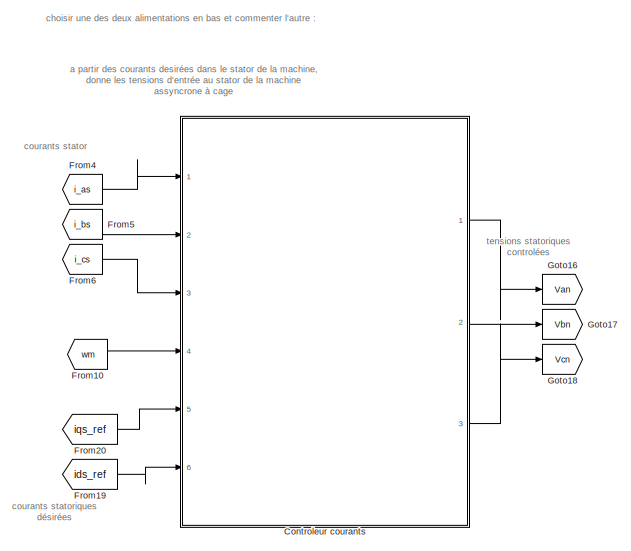
[diagram: root canvas - part 1/3, top left region]
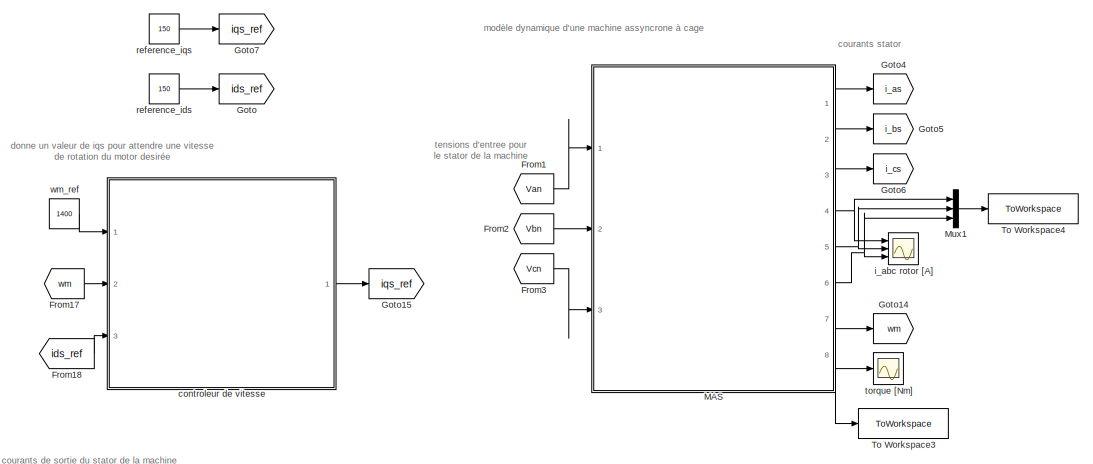
[diagram: root canvas - part 2/3, middle right region]
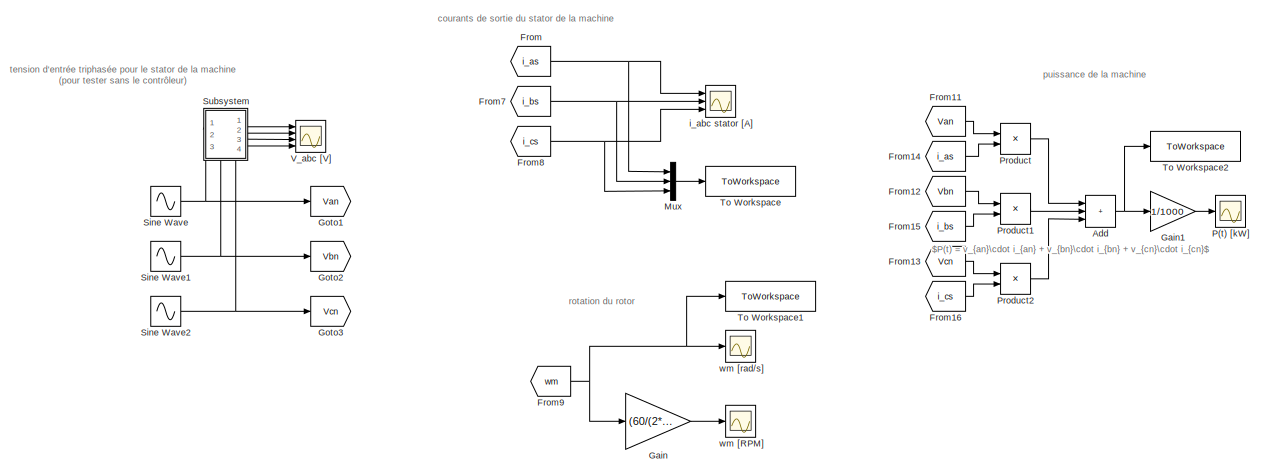
[diagram: root canvas - part 3/3, bottom center region]
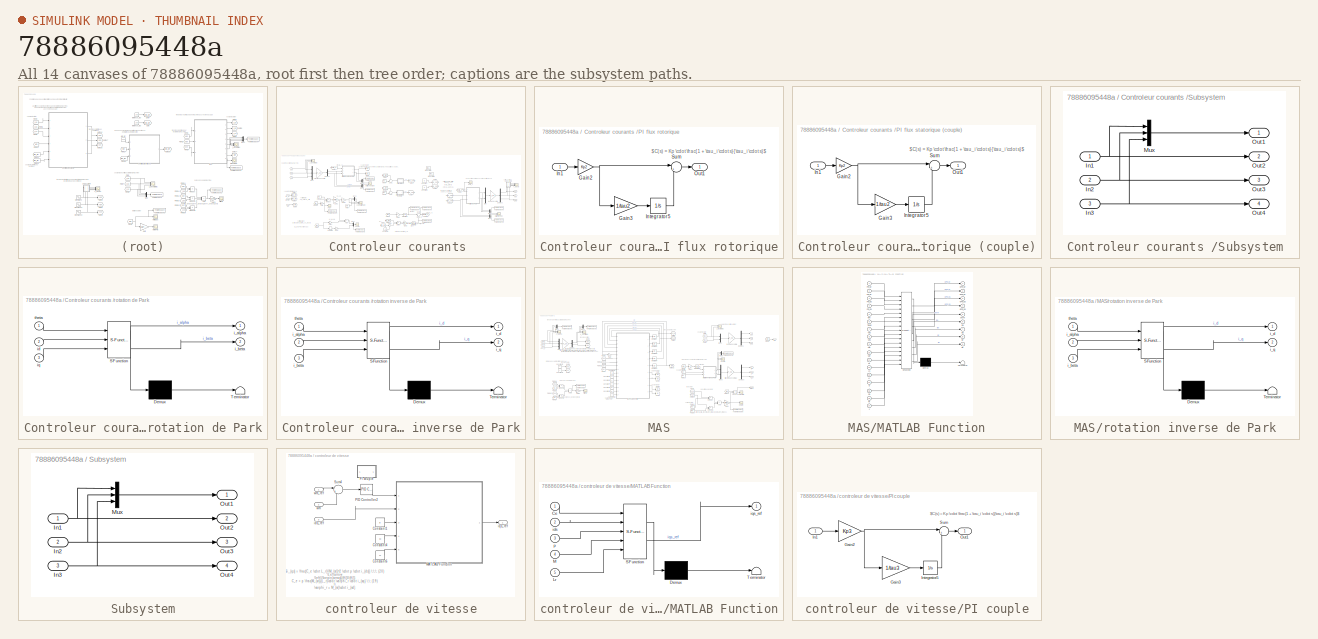
[diagram: thumbnail index - all 14 canvases of the model, root first then tree order]
MODEL slx_78886095448a
KIND model
CONFIG AbsTol = auto
CONFIG EnableMultiTasking = off
CONFIG FixedStep = fixed_step_size
CONFIG MaxStep = auto
CONFIG MinStep = auto
CONFIG RelTol = 1e-3
CONFIG SampleTimeConstraint = Unconstrained
CONFIG Solver = ode4
CONFIG SolverName = ode4
CONFIG StartTime = start_time
CONFIG StopTime = stop_time
BLOCK [Sum] Add
  IconShape = rectangular
  Inputs = +++
  Ports = [3, 1]
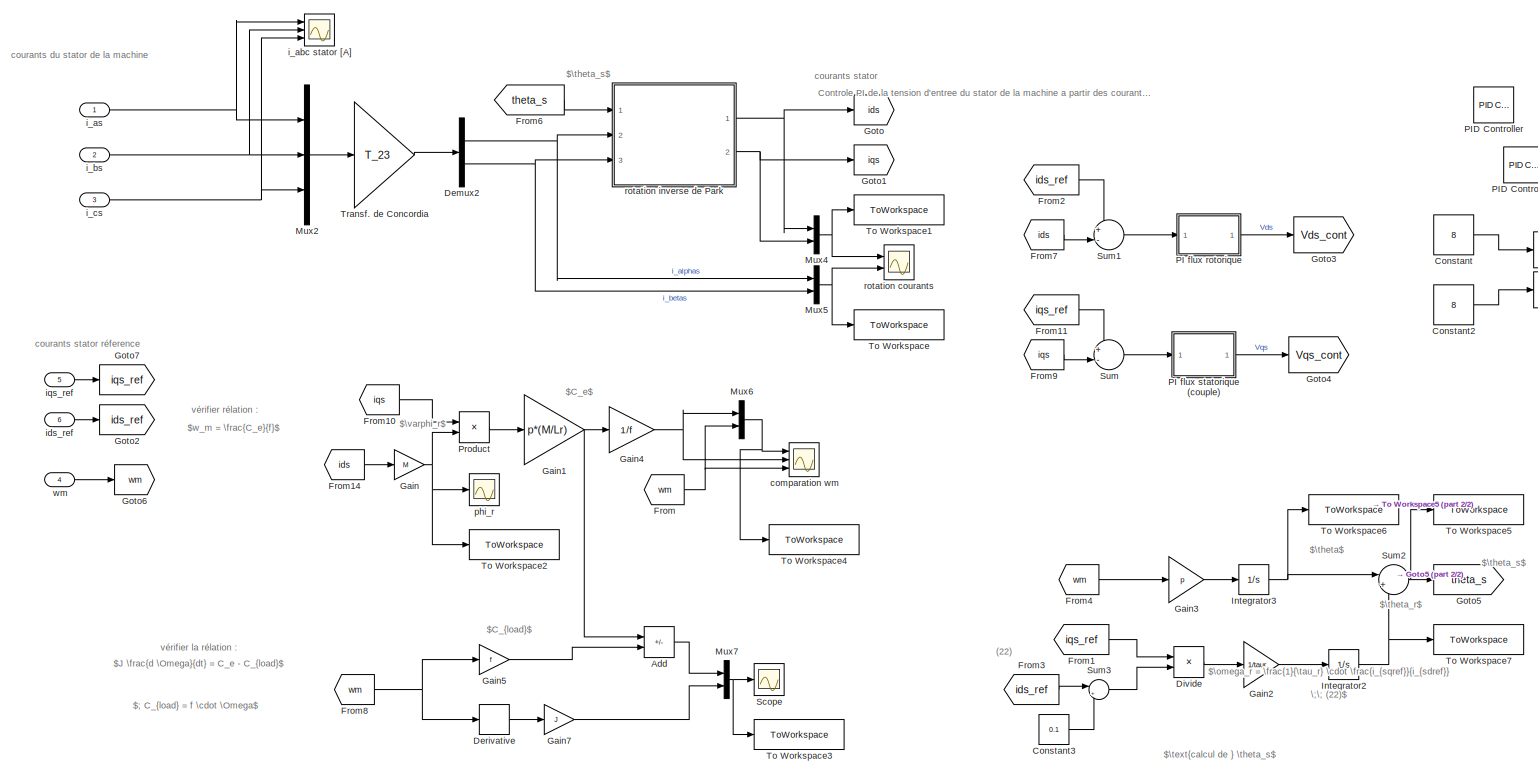
[diagram: Controleur courants  - part 1/2, left side, full height]
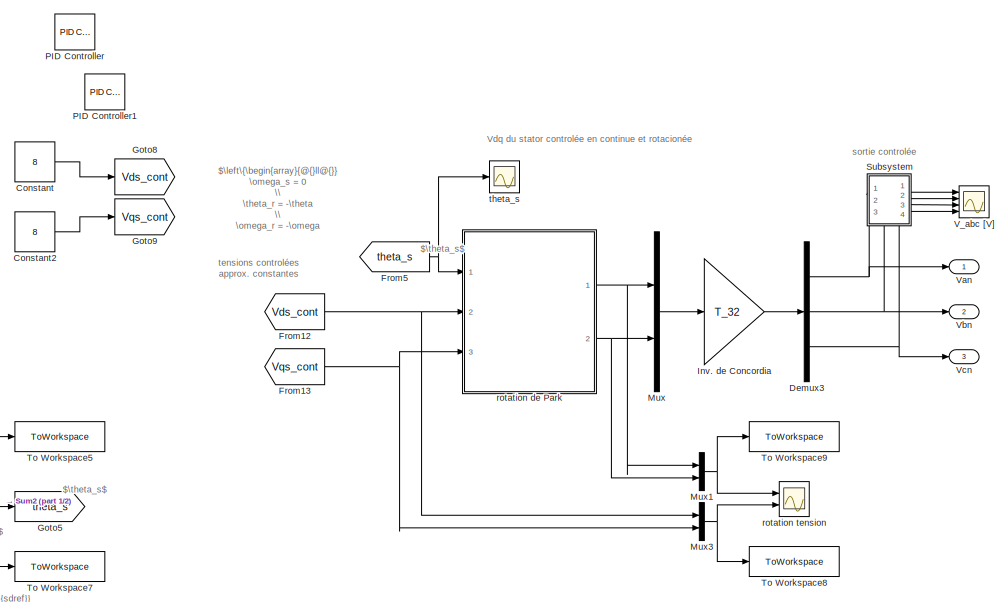
[diagram: Controleur courants  - part 2/2, right side, full height]
BLOCK [SubSystem] Controleur courants 
  Ports = [6, 3]
  RequestExecContextInheritance = off
BLOCK [Sum] Controleur courants /Add
  IconShape = rectangular
  Inputs = +-
  Ports = [2, 1]
BLOCK [Constant] Controleur courants /Constant
  Commented = on
  SampleTime = -1
  Value = 8
  VectorParams1D = off
BLOCK [Constant] Controleur courants /Constant2
  Commented = on
  SampleTime = -1
  Value = 8
  VectorParams1D = off
BLOCK [Constant] Controleur courants /Constant3
  Value = 0.1
BLOCK [Demux] Controleur courants /Demux2
  Outputs = 2
  Ports = [1, 2]
BLOCK [Demux] Controleur courants /Demux3
  Outputs = 3
  Ports = [1, 3]
BLOCK [Derivative] Controleur courants /Derivative
BLOCK [Product] Controleur courants /Divide
  Inputs = */
  Ports = [2, 1]
BLOCK [From] Controleur courants /From
  GotoTag = wm
BLOCK [From] Controleur courants /From1
  GotoTag = iqs_ref
BLOCK [From] Controleur courants /From10
  GotoTag = iqs
BLOCK [From] Controleur courants /From11
  GotoTag = iqs_ref
BLOCK [From] Controleur courants /From12
  GotoTag = Vds_cont
BLOCK [From] Controleur courants /From13
  GotoTag = Vqs_cont
BLOCK [From] Controleur courants /From14
  GotoTag = ids
BLOCK [From] Controleur courants /From2
  GotoTag = ids_ref
BLOCK [From] Controleur courants /From3
  GotoTag = ids_ref
BLOCK [From] Controleur courants /From4
  GotoTag = wm
BLOCK [From] Controleur courants /From5
  GotoTag = theta_s
BLOCK [From] Controleur courants /From6
  GotoTag = theta_s
BLOCK [From] Controleur courants /From7
  GotoTag = ids
BLOCK [From] Controleur courants /From8
  GotoTag = wm
BLOCK [From] Controleur courants /From9
  GotoTag = iqs
BLOCK [Gain] Controleur courants /Gain
  Gain = M
BLOCK [Gain] Controleur courants /Gain1
  Gain = p*(M/Lr)
BLOCK [Gain] Controleur courants /Gain2
  Gain = 1/taur
BLOCK [Gain] Controleur courants /Gain3
  Gain = p
BLOCK [Gain] Controleur courants /Gain4
  Gain = 1/f
BLOCK [Gain] Controleur courants /Gain5
  Gain = f
BLOCK [Gain] Controleur courants /Gain7
  Gain = J
BLOCK [Goto] Controleur courants /Goto
  GotoTag = ids
BLOCK [Goto] Controleur courants /Goto1
  GotoTag = iqs
BLOCK [Goto] Controleur courants /Goto2
  GotoTag = ids_ref
BLOCK [Goto] Controleur courants /Goto3
  GotoTag = Vds_cont
BLOCK [Goto] Controleur courants /Goto4
  GotoTag = Vqs_cont
BLOCK [Goto] Controleur courants /Goto5
  GotoTag = theta_s
BLOCK [Goto] Controleur courants /Goto6
  GotoTag = wm
BLOCK [Goto] Controleur courants /Goto7
  GotoTag = iqs_ref
BLOCK [Goto] Controleur courants /Goto8
  Commented = on
  GotoTag = Vds_cont
BLOCK [Goto] Controleur courants /Goto9
  Commented = on
  GotoTag = Vqs_cont
BLOCK [Integrator] Controleur courants /Integrator2
  Ports = [1, 1]
BLOCK [Integrator] Controleur courants /Integrator3
  Ports = [1, 1]
BLOCK [Gain] Controleur courants /Inv. de Concordia
  Gain = T_32
  Multiplication = Matrix(K*u)
BLOCK [Mux] Controleur courants /Mux
  DisplayOption = bar
  Inputs = 2
  Ports = [2, 1]
BLOCK [Mux] Controleur courants /Mux1
  DisplayOption = bar
  Inputs = 2
  Ports = [2, 1]
BLOCK [Mux] Controleur courants /Mux2
  DisplayOption = bar
  Inputs = 3
  Ports = [3, 1]
BLOCK [Mux] Controleur courants /Mux3
  DisplayOption = bar
  Inputs = 2
  Ports = [2, 1]
BLOCK [Mux] Controleur courants /Mux4
  DisplayOption = bar
  Inputs = 2
  Ports = [2, 1]
BLOCK [Mux] Controleur courants /Mux5
  DisplayOption = bar
  Inputs = 2
  Ports = [2, 1]
BLOCK [Mux] Controleur courants /Mux6
  DisplayOption = bar
  Inputs = 2
  Ports = [2, 1]
BLOCK [Mux] Controleur courants /Mux7
  DisplayOption = bar
  Inputs = 2
  Ports = [2, 1]
BLOCK [SubSystem] Controleur courants /PI flux rotorique
  Ports = [1, 1]
  RequestExecContextInheritance = off
BLOCK [Gain] Controleur courants /PI flux rotorique/Gain2
  Gain = Kp2
BLOCK [Gain] Controleur courants /PI flux rotorique/Gain3
  Gain = 1/tau2
BLOCK [Inport] Controleur courants /PI flux rotorique/In1
BLOCK [Integrator] Controleur courants /PI flux rotorique/Integrator5
  Ports = [1, 1]
BLOCK [Outport] Controleur courants /PI flux rotorique/Out1
BLOCK [Sum] Controleur courants /PI flux rotorique/Sum
  Inputs = |++
  Ports = [2, 1]
BLOCK [SubSystem] Controleur courants /PI flux statorique (couple)
  Ports = [1, 1]
  RequestExecContextInheritance = off
BLOCK [Gain] Controleur courants /PI flux statorique (couple)/Gain2
  Gain = Kp2
BLOCK [Gain] Controleur courants /PI flux statorique (couple)/Gain3
  Gain = 1/tau2
BLOCK [Inport] Controleur courants /PI flux statorique (couple)/In1
BLOCK [Integrator] Controleur courants /PI flux statorique (couple)/Integrator5
  Ports = [1, 1]
BLOCK [Outport] Controleur courants /PI flux statorique (couple)/Out1
BLOCK [Sum] Controleur courants /PI flux statorique (couple)/Sum
  Inputs = |++
  Ports = [2, 1]
BLOCK [Reference] Controleur courants /PID Controller  REF=simulink/Continuous/PID Controller
  Commented = on
  Ports = [1, 1]
  SourceBlock = simulink/Continuous/PID Controller
  SourceProductBaseCode = SL
  SourceType = PID 1dof
BLOCK [Reference] Controleur courants /PID Controller1  REF=simulink/Continuous/PID Controller
  Commented = on
  Ports = [1, 1]
  SourceBlock = simulink/Continuous/PID Controller
  SourceProductBaseCode = SL
  SourceType = PID 1dof
BLOCK [Product] Controleur courants /Product
  Ports = [2, 1]
BLOCK [Scope] Controleur courants /Scope
  Floating = off
  NumInputPorts = 1
  Ports = [1]
  ScopeSpecificationString = Simulink.scopes.TimeScopeBlockCfg('CurrentConfiguration', extmgr.ConfigurationSet(extmgr.Configuration('Core','General UI',true),extmgr.Configuration('Core','Source UI',true),extmgr.Configuration('Sources','WiredSimulink',true,'DataLoggingVariableName','ScopeData3'),extmgr.Configuration('Visuals','Time Domain',true,'SerializedDisplays',{struct('MinYLimReal','-0.84838','MaxYLimReal','7.5922','YLabe...<+1366ch>
BLOCK [SubSystem] Controleur courants /Subsystem
  PortSchema = {"entries":[{"content":{"sides":[{"content":{"connectorIds":[]},"type":"ConnectorPlacement.EquallySpacedRectSide","uuid":"f85b66a8-0283-4540-940c-33deb3ca5510"},{"content":{"connectorIds":["Out1","Out2","Out3","Out4"],"side":"RIGHT"},"type":"ConnectorPlacement.EquallySpacedRectSide","uuid":"e99f7d2c-d092-4cab-bef3-1d0691980dab"},{"content":{"connectorIds":[],"side":"TOP"},"type":"ConnectorPlacemen...<+419ch>
  Ports = [3, 4]
  RequestExecContextInheritance = off
BLOCK [Inport] Controleur courants /Subsystem/In1
BLOCK [Inport] Controleur courants /Subsystem/In2
  Port = 2
BLOCK [Inport] Controleur courants /Subsystem/In3
  Port = 3
BLOCK [Mux] Controleur courants /Subsystem/Mux
  DisplayOption = bar
  Inputs = 3
  Ports = [3, 1]
BLOCK [Outport] Controleur courants /Subsystem/Out1
BLOCK [Outport] Controleur courants /Subsystem/Out2
  Port = 2
BLOCK [Outport] Controleur courants /Subsystem/Out3
  Port = 3
BLOCK [Outport] Controleur courants /Subsystem/Out4
  Port = 4
BLOCK [Sum] Controleur courants /Sum
  Inputs = +-|
  Ports = [2, 1]
BLOCK [Sum] Controleur courants /Sum1
  Inputs = +-|
  Ports = [2, 1]
BLOCK [Sum] Controleur courants /Sum2
  Inputs = |++
  Ports = [2, 1]
BLOCK [Sum] Controleur courants /Sum3
  Inputs = |++
  Ports = [2, 1]
BLOCK [ToWorkspace] Controleur courants /To Workspace
  FixptAsFi = on
  MaxDataPoints = inf
  Ports = [1]
  SampleTime = -1
  VariableName = is_alphabeta
BLOCK [ToWorkspace] Controleur courants /To Workspace1
  FixptAsFi = on
  MaxDataPoints = inf
  Ports = [1]
  SampleTime = -1
  VariableName = is_dq
BLOCK [ToWorkspace] Controleur courants /To Workspace2
  FixptAsFi = on
  MaxDataPoints = inf
  Ports = [1]
  SampleTime = -1
  VariableName = phi_r
BLOCK [ToWorkspace] Controleur courants /To Workspace3
  FixptAsFi = on
  MaxDataPoints = inf
  Ports = [1]
  SampleTime = -1
  VariableName = relation
BLOCK [ToWorkspace] Controleur courants /To Workspace4
  FixptAsFi = on
  MaxDataPoints = inf
  Ports = [1]
  SampleTime = -1
  VariableName = comparation_wm
BLOCK [ToWorkspace] Controleur courants /To Workspace5
  FixptAsFi = on
  MaxDataPoints = inf
  Ports = [1]
  SampleTime = -1
  VariableName = theta_s
BLOCK [ToWorkspace] Controleur courants /To Workspace6
  FixptAsFi = on
  MaxDataPoints = inf
  Ports = [1]
  SampleTime = -1
  VariableName = theta
BLOCK [ToWorkspace] Controleur courants /To Workspace7
  FixptAsFi = on
  MaxDataPoints = inf
  Ports = [1]
  SampleTime = -1
  VariableName = theta_r
BLOCK [ToWorkspace] Controleur courants /To Workspace8
  FixptAsFi = on
  MaxDataPoints = inf
  Ports = [1]
  SampleTime = -1
  VariableName = Vs_dq
BLOCK [ToWorkspace] Controleur courants /To Workspace9
  FixptAsFi = on
  MaxDataPoints = inf
  Ports = [1]
  SampleTime = -1
  VariableName = Vs_alphabeta
BLOCK [Gain] Controleur courants /Transf. de Concordia
  Gain = T_23
  Multiplication = Matrix(K*u)
BLOCK [Scope] Controleur courants /V_abc [V]
  Floating = off
  NumInputPorts = 4
  Ports = [4]
  ScopeSpecificationString = Simulink.scopes.TimeScopeBlockCfg('CurrentConfiguration', extmgr.ConfigurationSet(extmgr.Configuration('Core','General UI',true,'FigureColor',[0 0 0]),extmgr.Configuration('Core','Source UI',true),extmgr.Configuration('Sources','WiredSimulink',true,'DataLoggingVariableName','ScopeData1'),extmgr.Configuration('Visuals','Time Domain',true,'SerializedDisplays',{struct('MinYLimReal','-13.46781','MaxYL...<+3976ch>
BLOCK [Outport] Controleur courants /Van
BLOCK [Outport] Controleur courants /Vbn
  Port = 2
BLOCK [Outport] Controleur courants /Vcn
  Port = 3
BLOCK [Scope] Controleur courants /comparation wm
  Floating = off
  NumInputPorts = 3
  Ports = [3]
  ScopeSpecificationString = Simulink.scopes.TimeScopeBlockCfg('CurrentConfiguration', extmgr.ConfigurationSet(extmgr.Configuration('Core','General UI',true),extmgr.Configuration('Core','Source UI',true),extmgr.Configuration('Sources','WiredSimulink',true,'DataLoggingVariableName','ScopeData1'),extmgr.Configuration('Visuals','Time Domain',true,'SerializedDisplays',{struct('MinYLimReal','360.14906','MaxYLimReal','1604.53206','...<+3113ch>
BLOCK [Scope] Controleur courants /i_abc stator [A]
  Floating = off
  NumInputPorts = 3
  Ports = [3]
  ScopeSpecificationString = Simulink.scopes.TimeScopeBlockCfg('CurrentConfiguration', extmgr.ConfigurationSet(extmgr.Configuration('Core','General UI',true,'FigureColor',[0 0 0]),extmgr.Configuration('Core','Source UI',true),extmgr.Configuration('Sources','WiredSimulink',true,'DataLoggingVariableName','ScopeData1'),extmgr.Configuration('Visuals','Time Domain',true,'SerializedDisplays',{struct('MinYLimReal','-1121.54843','Max...<+3134ch>
BLOCK [Inport] Controleur courants /i_as
BLOCK [Inport] Controleur courants /i_bs
  Port = 2
BLOCK [Inport] Controleur courants /i_cs
  Port = 3
BLOCK [Inport] Controleur courants /ids_ref
  Port = 6
BLOCK [Inport] Controleur courants /iqs_ref
  Port = 5
BLOCK [Scope] Controleur courants /phi_r
  Floating = off
  NumInputPorts = 1
  Ports = [1]
  ScopeSpecificationString = Simulink.scopes.TimeScopeBlockCfg('CurrentConfiguration', extmgr.ConfigurationSet(extmgr.Configuration('Core','General UI',true),extmgr.Configuration('Core','Source UI',true),extmgr.Configuration('Sources','WiredSimulink',true,'DataLoggingVariableName','ScopeData2'),extmgr.Configuration('Visuals','Time Domain',true,'SerializedDisplays',{struct('MinYLimReal','-0.00438','MaxYLimReal','0.03939','YLab...<+1363ch>
BLOCK [Scope] Controleur courants /rotation courants 
  Floating = off
  NumInputPorts = 2
  Ports = [2]
  ScopeSpecificationString = Simulink.scopes.TimeScopeBlockCfg('CurrentConfiguration', extmgr.ConfigurationSet(extmgr.Configuration('Core','General UI',true),extmgr.Configuration('Core','Source UI',true),extmgr.Configuration('Sources','WiredSimulink',true,'DataLoggingVariableName','ScopeData1'),extmgr.Configuration('Visuals','Time Domain',true,'SerializedDisplays',{struct('MinYLimReal','-265.51833','MaxYLimReal','265.51855','...<+2094ch>
BLOCK [SubSystem] Controleur courants /rotation de Park
  ErrorFcn = Stateflow.Translate.translate
  PermitHierarchicalResolution = ExplicitOnly
  Ports = [3, 2]
  RequestExecContextInheritance = off
  SFBlockType = MATLAB Function
  TreatAsAtomicUnit = on
BLOCK [Demux] Controleur courants /rotation de Park/ Demux 
  Outputs = 1
  Ports = [1, 1]
BLOCK [S-Function] Controleur courants /rotation de Park/ SFunction 
  EnableBusSupport = on
  FunctionName = sf_sfun
  PortCounts = [3 3]
  Ports = [3, 3]
  SFcnIsStateOwnerBlock = off
  SFunctionDeploymentMode = off
  Tag = Stateflow S-Function 6
BLOCK [Terminator] Controleur courants /rotation de Park/ Terminator 
BLOCK [Outport] Controleur courants /rotation de Park/i_alpha
BLOCK [Outport] Controleur courants /rotation de Park/i_beta
  Port = 2
BLOCK [Inport] Controleur courants /rotation de Park/id
  Port = 2
BLOCK [Inport] Controleur courants /rotation de Park/iq
  Port = 3
BLOCK [Inport] Controleur courants /rotation de Park/theta
BLOCK [SubSystem] Controleur courants /rotation inverse de Park
  ErrorFcn = Stateflow.Translate.translate
  PermitHierarchicalResolution = ExplicitOnly
  Ports = [3, 2]
  RequestExecContextInheritance = off
  SFBlockType = MATLAB Function
  TreatAsAtomicUnit = on
BLOCK [Demux] Controleur courants /rotation inverse de Park/ Demux 
  Outputs = 1
  Ports = [1, 1]
BLOCK [S-Function] Controleur courants /rotation inverse de Park/ SFunction 
  EnableBusSupport = on
  FunctionName = sf_sfun
  PortCounts = [3 3]
  Ports = [3, 3]
  SFcnIsStateOwnerBlock = off
  SFunctionDeploymentMode = off
  Tag = Stateflow S-Function 4
BLOCK [Terminator] Controleur courants /rotation inverse de Park/ Terminator 
BLOCK [Inport] Controleur courants /rotation inverse de Park/i_alpha
  Port = 2
BLOCK [Inport] Controleur courants /rotation inverse de Park/i_beta
  Port = 3
BLOCK [Outport] Controleur courants /rotation inverse de Park/i_d
BLOCK [Outport] Controleur courants /rotation inverse de Park/i_q
  Port = 2
BLOCK [Inport] Controleur courants /rotation inverse de Park/theta
BLOCK [Scope] Controleur courants /rotation tension
  Floating = off
  NumInputPorts = 2
  Ports = [2]
  ScopeSpecificationString = Simulink.scopes.TimeScopeBlockCfg('CurrentConfiguration', extmgr.ConfigurationSet(extmgr.Configuration('Core','General UI',true),extmgr.Configuration('Core','Source UI',true),extmgr.Configuration('Sources','WiredSimulink',true,'DataLoggingVariableName','ScopeData2'),extmgr.Configuration('Visuals','Time Domain',true,'SerializedDisplays',{struct('MinYLimReal','5.67632','MaxYLimReal','9.04967','YLabe...<+2098ch>
BLOCK [Scope] Controleur courants /theta_s
  Floating = off
  NumInputPorts = 1
  Ports = [1]
  ScopeSpecificationString = Simulink.scopes.TimeScopeBlockCfg('CurrentConfiguration', extmgr.ConfigurationSet(extmgr.Configuration('Core','General UI',true),extmgr.Configuration('Core','Source UI',true),extmgr.Configuration('Sources','WiredSimulink',true,'DataLoggingVariableName','ScopeData1'),extmgr.Configuration('Visuals','Time Domain',true,'SerializedDisplays',{struct('MinYLimReal','-9604.68881','MaxYLimReal','86442.19927...<+1417ch>
BLOCK [Inport] Controleur courants /wm
  Port = 4
BLOCK [From] From
  GotoTag = i_as
BLOCK [From] From1
  GotoTag = Van
BLOCK [From] From10
  GotoTag = wm
BLOCK [From] From11
  GotoTag = Van
BLOCK [From] From12
  GotoTag = Vbn
BLOCK [From] From13
  GotoTag = Vcn
BLOCK [From] From14
  GotoTag = i_as
BLOCK [From] From15
  GotoTag = i_bs
BLOCK [From] From16
  GotoTag = i_cs
BLOCK [From] From17
  Commented = on
  GotoTag = wm
BLOCK [From] From18
  Commented = on
  GotoTag = ids_ref
BLOCK [From] From19
  GotoTag = ids_ref
BLOCK [From] From2
  GotoTag = Vbn
BLOCK [From] From20
  GotoTag = iqs_ref
BLOCK [From] From3
  GotoTag = Vcn
BLOCK [From] From4
  GotoTag = i_as
BLOCK [From] From5
  GotoTag = i_bs
BLOCK [From] From6
  GotoTag = i_cs
BLOCK [From] From7
  GotoTag = i_bs
BLOCK [From] From8
  GotoTag = i_cs
BLOCK [From] From9
  GotoTag = wm
BLOCK [Gain] Gain
  Gain = (60/(2*pi))
BLOCK [Gain] Gain1
  Gain = 1/1000
BLOCK [Goto] Goto
  GotoTag = ids_ref
BLOCK [Goto] Goto1
  Commented = on
  GotoTag = Van
BLOCK [Goto] Goto14
  GotoTag = wm
BLOCK [Goto] Goto15
  Commented = on
  GotoTag = iqs_ref
BLOCK [Goto] Goto16
  GotoTag = Van
BLOCK [Goto] Goto17
  GotoTag = Vbn
BLOCK [Goto] Goto18
  GotoTag = Vcn
BLOCK [Goto] Goto2
  Commented = on
  GotoTag = Vbn
BLOCK [Goto] Goto3
  Commented = on
  GotoTag = Vcn
BLOCK [Goto] Goto4
  GotoTag = i_as
BLOCK [Goto] Goto5
  GotoTag = i_bs
BLOCK [Goto] Goto6
  GotoTag = i_cs
BLOCK [Goto] Goto7
  GotoTag = iqs_ref
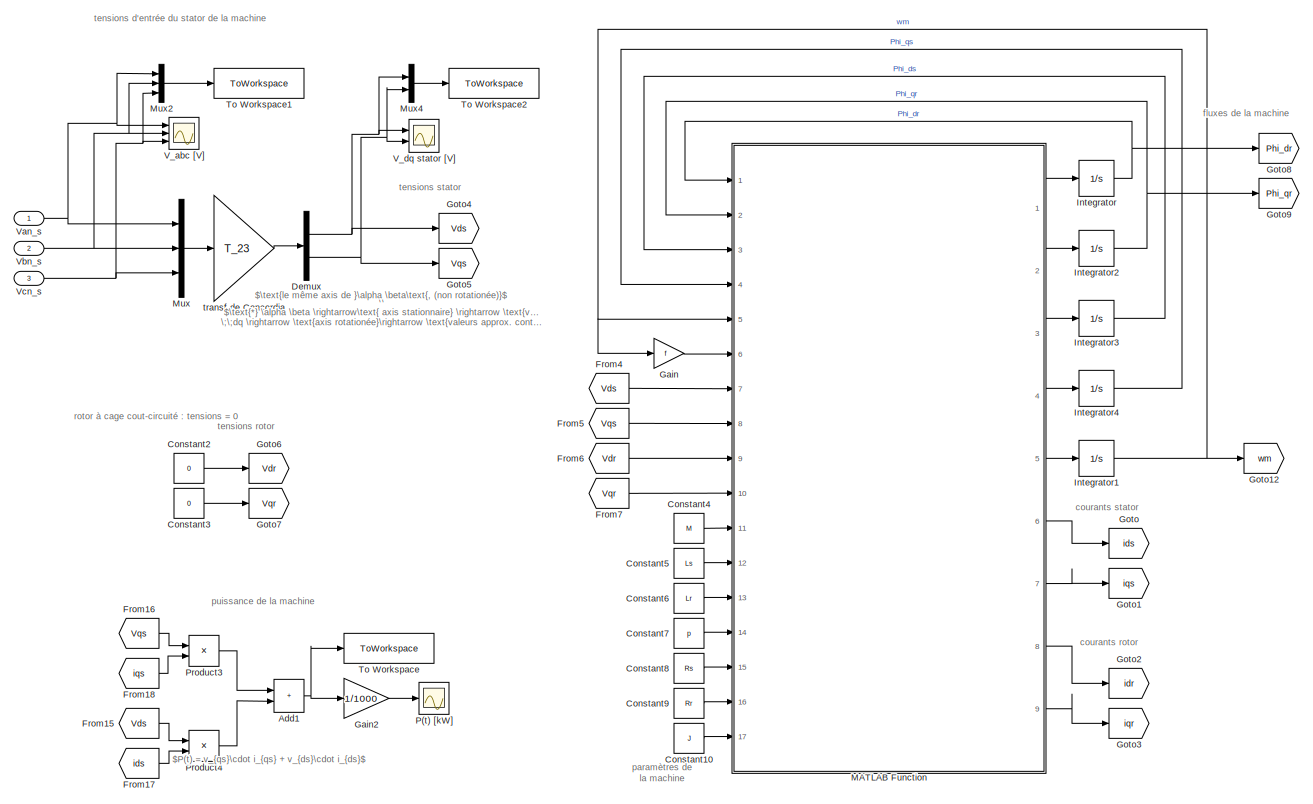
[diagram: MAS - part 1/2, left side, full height]
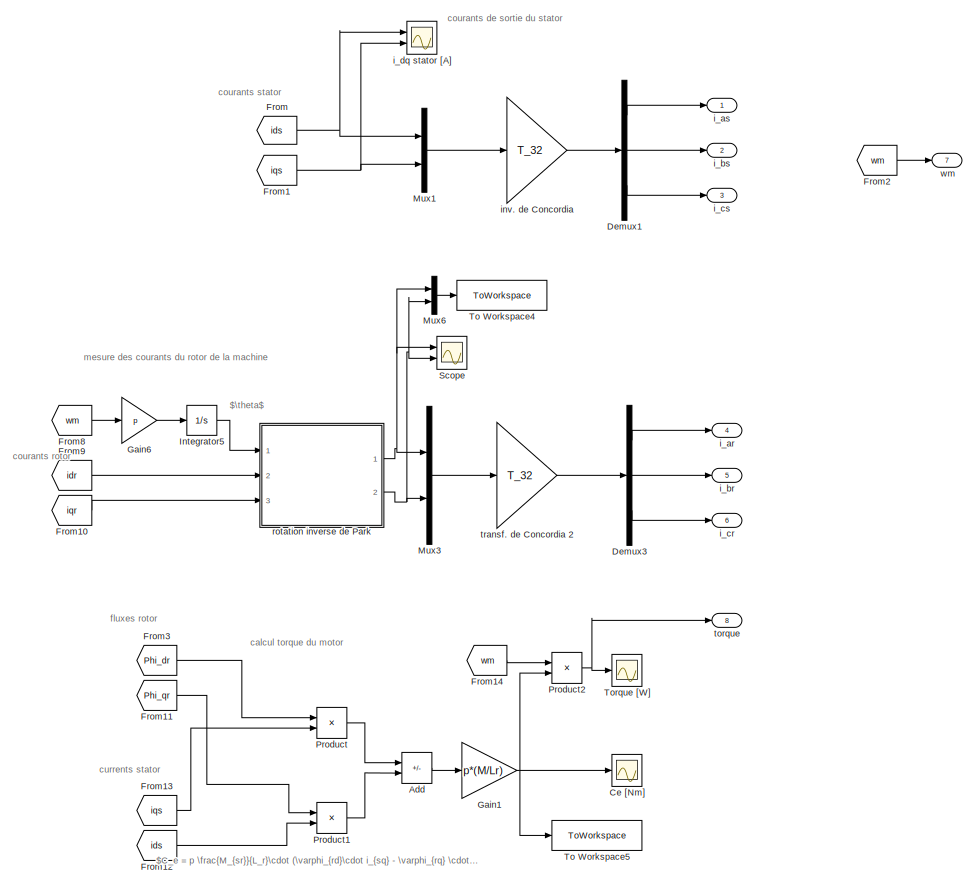
[diagram: MAS - part 2/2, right side, full height]
BLOCK [SubSystem] MAS
  Ports = [3, 8]
  RequestExecContextInheritance = off
BLOCK [Sum] MAS/Add
  IconShape = rectangular
  Inputs = +-
  Ports = [2, 1]
BLOCK [Sum] MAS/Add1
  IconShape = rectangular
  Ports = [2, 1]
BLOCK [Scope] MAS/Ce [Nm]
  Floating = off
  NumInputPorts = 1
  Ports = [1]
  ScopeSpecificationString = Simulink.scopes.TimeScopeBlockCfg('CurrentConfiguration', extmgr.ConfigurationSet(extmgr.Configuration('Core','General UI',true),extmgr.Configuration('Core','Source UI',true),extmgr.Configuration('Sources','WiredSimulink',true,'DataLoggingVariableName','ScopeData4'),extmgr.Configuration('Visuals','Time Domain',true,'SerializedDisplays',{struct('MinYLimReal','-1.02516','MaxYLimReal','9.22646','YLab...<+1427ch>
BLOCK [Constant] MAS/Constant10
  Value = J
BLOCK [Constant] MAS/Constant2
  Value = 0
BLOCK [Constant] MAS/Constant3
  Value = 0
BLOCK [Constant] MAS/Constant4
  Value = M
BLOCK [Constant] MAS/Constant5
  Value = Ls
BLOCK [Constant] MAS/Constant6
  Value = Lr
BLOCK [Constant] MAS/Constant7
  Value = p
BLOCK [Constant] MAS/Constant8
  Value = Rs
BLOCK [Constant] MAS/Constant9
  Value = Rr
BLOCK [Demux] MAS/Demux
  Outputs = 2
  Ports = [1, 2]
BLOCK [Demux] MAS/Demux1
  Outputs = 3
  Ports = [1, 3]
BLOCK [Demux] MAS/Demux3
  Outputs = 3
  Ports = [1, 3]
BLOCK [From] MAS/From
  GotoTag = ids
BLOCK [From] MAS/From1
  GotoTag = iqs
BLOCK [From] MAS/From10
  GotoTag = iqr
BLOCK [From] MAS/From11
  GotoTag = Phi_qr
BLOCK [From] MAS/From12
  GotoTag = ids
BLOCK [From] MAS/From13
  GotoTag = iqs
BLOCK [From] MAS/From14
  GotoTag = wm
BLOCK [From] MAS/From15
  GotoTag = Vds
BLOCK [From] MAS/From16
  GotoTag = Vqs
BLOCK [From] MAS/From17
  GotoTag = ids
BLOCK [From] MAS/From18
  GotoTag = iqs
BLOCK [From] MAS/From2
  GotoTag = wm
BLOCK [From] MAS/From3
  GotoTag = Phi_dr
BLOCK [From] MAS/From4
  GotoTag = Vds
BLOCK [From] MAS/From5
  GotoTag = Vqs
BLOCK [From] MAS/From6
  GotoTag = Vdr
BLOCK [From] MAS/From7
  GotoTag = Vqr
BLOCK [From] MAS/From8
  GotoTag = wm
BLOCK [From] MAS/From9
  GotoTag = idr
BLOCK [Gain] MAS/Gain
  Gain = f
BLOCK [Gain] MAS/Gain1
  Gain = p*(M/Lr)
BLOCK [Gain] MAS/Gain2
  Gain = 1/1000
BLOCK [Gain] MAS/Gain6
  Gain = p
BLOCK [Goto] MAS/Goto
  GotoTag = ids
BLOCK [Goto] MAS/Goto1
  GotoTag = iqs
BLOCK [Goto] MAS/Goto12
  GotoTag = wm
BLOCK [Goto] MAS/Goto2
  GotoTag = idr
BLOCK [Goto] MAS/Goto3
  GotoTag = iqr
BLOCK [Goto] MAS/Goto4
  GotoTag = Vds
BLOCK [Goto] MAS/Goto5
  GotoTag = Vqs
BLOCK [Goto] MAS/Goto6
  GotoTag = Vdr
BLOCK [Goto] MAS/Goto7
  GotoTag = Vqr
BLOCK [Goto] MAS/Goto8
  GotoTag = Phi_dr
BLOCK [Goto] MAS/Goto9
  GotoTag = Phi_qr
BLOCK [Integrator] MAS/Integrator
  Ports = [1, 1]
BLOCK [Integrator] MAS/Integrator1
  Ports = [1, 1]
BLOCK [Integrator] MAS/Integrator2
  Ports = [1, 1]
BLOCK [Integrator] MAS/Integrator3
  Ports = [1, 1]
BLOCK [Integrator] MAS/Integrator4
  Ports = [1, 1]
BLOCK [Integrator] MAS/Integrator5
  Ports = [1, 1]
BLOCK [SubSystem] MAS/MATLAB Function
  ErrorFcn = Stateflow.Translate.translate
  PermitHierarchicalResolution = ExplicitOnly
  Ports = [17, 9]
  RequestExecContextInheritance = off
  SFBlockType = MATLAB Function
  TreatAsAtomicUnit = on
BLOCK [Demux] MAS/MATLAB Function/ Demux 
  Outputs = 1
  Ports = [1, 1]
BLOCK [S-Function] MAS/MATLAB Function/ SFunction 
  EnableBusSupport = on
  FunctionName = sf_sfun
  PortCounts = [17 10]
  Ports = [17, 10]
  SFcnIsStateOwnerBlock = off
  SFunctionDeploymentMode = off
  Tag = Stateflow S-Function 2
BLOCK [Terminator] MAS/MATLAB Function/ Terminator 
BLOCK [Inport] MAS/MATLAB Function/J
  Port = 17
BLOCK [Inport] MAS/MATLAB Function/Lr
  Port = 13
BLOCK [Inport] MAS/MATLAB Function/Ls
  Port = 12
BLOCK [Inport] MAS/MATLAB Function/M
  Port = 11
BLOCK [Inport] MAS/MATLAB Function/Phi_dr
BLOCK [Inport] MAS/MATLAB Function/Phi_ds
  Port = 3
BLOCK [Inport] MAS/MATLAB Function/Phi_qr
  Port = 2
BLOCK [Inport] MAS/MATLAB Function/Phi_qs
  Port = 4
BLOCK [Inport] MAS/MATLAB Function/Rr
  Port = 16
BLOCK [Inport] MAS/MATLAB Function/Rs
  Port = 15
BLOCK [Inport] MAS/MATLAB Function/Tload
  Port = 6
BLOCK [Inport] MAS/MATLAB Function/Vdr
  Port = 9
BLOCK [Inport] MAS/MATLAB Function/Vds
  Port = 7
BLOCK [Inport] MAS/MATLAB Function/Vqr
  Port = 10
BLOCK [Inport] MAS/MATLAB Function/Vqs
  Port = 8
BLOCK [Outport] MAS/MATLAB Function/dPhi_dr
BLOCK [Outport] MAS/MATLAB Function/dPhi_ds
  Port = 3
BLOCK [Outport] MAS/MATLAB Function/dPhi_qr
  Port = 2
BLOCK [Outport] MAS/MATLAB Function/dPhi_qs
  Port = 4
BLOCK [Outport] MAS/MATLAB Function/dWm
  Port = 5
BLOCK [Outport] MAS/MATLAB Function/idr
  Port = 8
BLOCK [Outport] MAS/MATLAB Function/ids
  Port = 6
BLOCK [Outport] MAS/MATLAB Function/iqr
  Port = 9
BLOCK [Outport] MAS/MATLAB Function/iqs
  Port = 7
BLOCK [Inport] MAS/MATLAB Function/p
  Port = 14
BLOCK [Inport] MAS/MATLAB Function/wm
  Port = 5
BLOCK [Mux] MAS/Mux
  DisplayOption = bar
  Inputs = 3
  Ports = [3, 1]
BLOCK [Mux] MAS/Mux1
  DisplayOption = bar
  Inputs = 2
  Ports = [2, 1]
BLOCK [Mux] MAS/Mux2
  DisplayOption = bar
  Inputs = 3
  Ports = [3, 1]
BLOCK [Mux] MAS/Mux3
  DisplayOption = bar
  Inputs = 2
  Ports = [2, 1]
BLOCK [Mux] MAS/Mux4
  DisplayOption = bar
  Inputs = 2
  Ports = [2, 1]
BLOCK [Mux] MAS/Mux6
  DisplayOption = bar
  Inputs = 2
  Ports = [2, 1]
BLOCK [Scope] MAS/P(t) [kW]
  Floating = off
  NumInputPorts = 1
  Ports = [1]
  ScopeSpecificationString = Simulink.scopes.TimeScopeBlockCfg('CurrentConfiguration', extmgr.ConfigurationSet(extmgr.Configuration('Core','General UI',true),extmgr.Configuration('Core','Source UI',true),extmgr.Configuration('Sources','WiredSimulink',true,'DataLoggingVariableName','ScopeData1'),extmgr.Configuration('Visuals','Time Domain',true,'SerializedDisplays',{struct('MinYLimReal','-0.02605','MaxYLimReal','0.23448','YLab...<+1441ch>
BLOCK [Product] MAS/Product
  Ports = [2, 1]
BLOCK [Product] MAS/Product1
  Ports = [2, 1]
BLOCK [Product] MAS/Product2
  Ports = [2, 1]
BLOCK [Product] MAS/Product3
  Ports = [2, 1]
BLOCK [Product] MAS/Product4
  Ports = [2, 1]
BLOCK [Scope] MAS/Scope
  Floating = off
  NumInputPorts = 2
  Ports = [2]
  ScopeSpecificationString = Simulink.scopes.TimeScopeBlockCfg('CurrentConfiguration', extmgr.ConfigurationSet(extmgr.Configuration('Core','General UI',true),extmgr.Configuration('Core','Source UI',true),extmgr.Configuration('Sources','WiredSimulink',true,'DataLoggingVariableName','ScopeData1'),extmgr.Configuration('Visuals','Time Domain',true,'SerializedDisplays',{struct('MinYLimReal','-174.79105','MaxYLimReal','174.79107','...<+1460ch>
BLOCK [ToWorkspace] MAS/To Workspace
  FixptAsFi = on
  MaxDataPoints = inf
  Ports = [1]
  SampleTime = -1
  VariableName = Pdq
BLOCK [ToWorkspace] MAS/To Workspace1
  FixptAsFi = on
  MaxDataPoints = inf
  Ports = [1]
  SampleTime = -1
  VariableName = vs_abc
BLOCK [ToWorkspace] MAS/To Workspace2
  FixptAsFi = on
  MaxDataPoints = inf
  Ports = [1]
  SampleTime = -1
  VariableName = vs_dq
BLOCK [ToWorkspace] MAS/To Workspace4
  FixptAsFi = on
  MaxDataPoints = inf
  Ports = [1]
  SampleTime = -1
  VariableName = ir_dq
BLOCK [ToWorkspace] MAS/To Workspace5
  FixptAsFi = on
  MaxDataPoints = inf
  Ports = [1]
  SampleTime = -1
  VariableName = Ce
BLOCK [Scope] MAS/Torque [W]
  Floating = off
  NumInputPorts = 1
  Ports = [1]
  ScopeSpecificationString = Simulink.scopes.TimeScopeBlockCfg('CurrentConfiguration', extmgr.ConfigurationSet(extmgr.Configuration('Core','General UI',true),extmgr.Configuration('Core','Source UI',true),extmgr.Configuration('Sources','WiredSimulink',true,'DataLoggingVariableName','ScopeData6'),extmgr.Configuration('Visuals','Time Domain',true,'SerializedDisplays',{struct('MinYLimReal','-1270.38391','MaxYLimReal','10696.89715...<+1452ch>
BLOCK [Scope] MAS/V_abc [V]
  Floating = off
  NumInputPorts = 3
  Ports = [3]
  ScopeSpecificationString = Simulink.scopes.TimeScopeBlockCfg('CurrentConfiguration', extmgr.ConfigurationSet(extmgr.Configuration('Core','General UI',true,'FigureColor',[0 0 0]),extmgr.Configuration('Core','Source UI',true),extmgr.Configuration('Sources','WiredSimulink',true,'DataLoggingVariableName','ScopeData8'),extmgr.Configuration('Visuals','Time Domain',true,'SerializedDisplays',{struct('MinYLimReal','-31.4681','MaxYLi...<+1942ch>
BLOCK [Scope] MAS/V_dq stator [V]
  Floating = off
  NumInputPorts = 2
  Ports = [2]
  ScopeSpecificationString = Simulink.scopes.TimeScopeBlockCfg('CurrentConfiguration', extmgr.ConfigurationSet(extmgr.Configuration('Core','General UI',true),extmgr.Configuration('Core','Source UI',true),extmgr.Configuration('Sources','WiredSimulink',true,'DataLoggingVariableName','ScopeData1'),extmgr.Configuration('Visuals','Time Domain',true,'SerializedDisplays',{struct('MinYLimReal','-7.79069','MaxYLimReal','37.73641','YLa...<+1540ch>
BLOCK [Inport] MAS/Van_s
BLOCK [Inport] MAS/Vbn_s
  Port = 2
BLOCK [Inport] MAS/Vcn_s
  Port = 3
BLOCK [Outport] MAS/i_ar
  Port = 4
BLOCK [Outport] MAS/i_as
BLOCK [Outport] MAS/i_br
  Port = 5
BLOCK [Outport] MAS/i_bs
  Port = 2
BLOCK [Outport] MAS/i_cr
  Port = 6
BLOCK [Outport] MAS/i_cs
  Port = 3
BLOCK [Scope] MAS/i_dq stator [A]
  Floating = off
  NumInputPorts = 2
  Ports = [2]
  ScopeSpecificationString = Simulink.scopes.TimeScopeBlockCfg('CurrentConfiguration', extmgr.ConfigurationSet(extmgr.Configuration('Core','General UI',true),extmgr.Configuration('Core','Source UI',true),extmgr.Configuration('Sources','WiredSimulink',true,'DataLoggingVariableName','ScopeData3'),extmgr.Configuration('Visuals','Time Domain',true,'SerializedDisplays',{struct('MinYLimReal','-205.0627','MaxYLimReal','213.28564','Y...<+1519ch>
BLOCK [Gain] MAS/inv. de Concordia
  Gain = T_32
  Multiplication = Matrix(K*u)
BLOCK [SubSystem] MAS/rotation inverse de Park
  ErrorFcn = Stateflow.Translate.translate
  PermitHierarchicalResolution = ExplicitOnly
  Ports = [3, 2]
  RequestExecContextInheritance = off
  SFBlockType = MATLAB Function
  TreatAsAtomicUnit = on
BLOCK [Demux] MAS/rotation inverse de Park/ Demux 
  Outputs = 1
  Ports = [1, 1]
BLOCK [S-Function] MAS/rotation inverse de Park/ SFunction 
  EnableBusSupport = on
  FunctionName = sf_sfun
  PortCounts = [3 3]
  Ports = [3, 3]
  SFcnIsStateOwnerBlock = off
  SFunctionDeploymentMode = off
  Tag = Stateflow S-Function 5
BLOCK [Terminator] MAS/rotation inverse de Park/ Terminator 
BLOCK [Inport] MAS/rotation inverse de Park/i_alpha
  Port = 2
BLOCK [Inport] MAS/rotation inverse de Park/i_beta
  Port = 3
BLOCK [Outport] MAS/rotation inverse de Park/i_d
BLOCK [Outport] MAS/rotation inverse de Park/i_q
  Port = 2
BLOCK [Inport] MAS/rotation inverse de Park/theta
BLOCK [Outport] MAS/torque
  Port = 8
BLOCK [Gain] MAS/transf de Concordia
  Gain = T_23
  Multiplication = Matrix(K*u)
BLOCK [Gain] MAS/transf. de Concordia 2
  Gain = T_32
  Multiplication = Matrix(K*u)
BLOCK [Outport] MAS/wm
  Port = 7
BLOCK [Mux] Mux
  DisplayOption = bar
  Inputs = 3
  Ports = [3, 1]
BLOCK [Mux] Mux1
  DisplayOption = bar
  Inputs = 3
  Ports = [3, 1]
BLOCK [Scope] P(t) [kW]
  Floating = off
  NumInputPorts = 1
  Ports = [1]
  ScopeSpecificationString = Simulink.scopes.TimeScopeBlockCfg('CurrentConfiguration', extmgr.ConfigurationSet(extmgr.Configuration('Core','General UI',true),extmgr.Configuration('Core','Source UI',true),extmgr.Configuration('Sources','WiredSimulink',true,'DataLoggingVariableName','ScopeData5'),extmgr.Configuration('Visuals','Time Domain',true,'SerializedDisplays',{struct('MinYLimReal','-1.5548','MaxYLimReal','13.99319','YLab...<+1446ch>
BLOCK [Product] Product
  Ports = [2, 1]
BLOCK [Product] Product1
  Ports = [2, 1]
BLOCK [Product] Product2
  Ports = [2, 1]
BLOCK [Sin] Sine Wave
  Amplitude = 30
  Commented = on
  Frequency = 300*2*pi
  Ports = [0, 1]
  SampleTime = 0
BLOCK [Sin] Sine Wave1
  Amplitude = 30
  Commented = on
  Frequency = 300*2*pi
  Phase = -2*pi/3
  Ports = [0, 1]
  SampleTime = 0
BLOCK [Sin] Sine Wave2
  Amplitude = 30
  Commented = on
  Frequency = 300*2*pi
  Phase = (2*pi)/3
  Ports = [0, 1]
  SampleTime = 0
BLOCK [SubSystem] Subsystem
  Commented = on
  PortSchema = {"entries":[{"content":{"sides":[{"content":{"connectorIds":[]},"type":"ConnectorPlacement.EquallySpacedRectSide","uuid":"f85b66a8-0283-4540-940c-33deb3ca5510"},{"content":{"connectorIds":["Out1","Out2","Out3","Out4"],"side":"RIGHT"},"type":"ConnectorPlacement.EquallySpacedRectSide","uuid":"e99f7d2c-d092-4cab-bef3-1d0691980dab"},{"content":{"connectorIds":[],"side":"TOP"},"type":"ConnectorPlacemen...<+419ch>
  Ports = [3, 4]
  RequestExecContextInheritance = off
BLOCK [Inport] Subsystem/In1
BLOCK [Inport] Subsystem/In2
  Port = 2
BLOCK [Inport] Subsystem/In3
  Port = 3
BLOCK [Mux] Subsystem/Mux
  DisplayOption = bar
  Inputs = 3
  Ports = [3, 1]
BLOCK [Outport] Subsystem/Out1
BLOCK [Outport] Subsystem/Out2
  Port = 2
BLOCK [Outport] Subsystem/Out3
  Port = 3
BLOCK [Outport] Subsystem/Out4
  Port = 4
BLOCK [ToWorkspace] To Workspace
  FixptAsFi = on
  MaxDataPoints = inf
  Ports = [1]
  SampleTime = -1
  VariableName = is_abc
BLOCK [ToWorkspace] To Workspace1
  FixptAsFi = on
  MaxDataPoints = inf
  Ports = [1]
  SampleTime = -1
  VariableName = wm
BLOCK [ToWorkspace] To Workspace2
  FixptAsFi = on
  MaxDataPoints = inf
  Ports = [1]
  SampleTime = -1
  VariableName = P
BLOCK [ToWorkspace] To Workspace3
  FixptAsFi = on
  MaxDataPoints = inf
  Ports = [1]
  SampleTime = -1
  VariableName = torque
BLOCK [ToWorkspace] To Workspace4
  FixptAsFi = on
  MaxDataPoints = inf
  Ports = [1]
  SampleTime = -1
  VariableName = ir_abc
BLOCK [Scope] V_abc [V]
  Commented = on
  Floating = off
  NumInputPorts = 4
  Ports = [4]
  ScopeSpecificationString = Simulink.scopes.TimeScopeBlockCfg('CurrentConfiguration', extmgr.ConfigurationSet(extmgr.Configuration('Core','General UI',true,'FigureColor',[0 0 0]),extmgr.Configuration('Core','Source UI',true),extmgr.Configuration('Sources','WiredSimulink',true,'DataLoggingVariableName','ScopeData5'),extmgr.Configuration('Visuals','Time Domain',true,'SerializedDisplays',{struct('MinYLimReal','-35.52407','MaxYL...<+3976ch>
BLOCK [SubSystem] controleur de vitesse
  Commented = on
  Ports = [3, 1]
  RequestExecContextInheritance = off
BLOCK [Constant] controleur de vitesse/Constant1
  Value = p
BLOCK [Constant] controleur de vitesse/Constant4
  Value = M
BLOCK [Constant] controleur de vitesse/Constant6
  Value = Lr
BLOCK [SubSystem] controleur de vitesse/MATLAB Function
  ErrorFcn = Stateflow.Translate.translate
  PermitHierarchicalResolution = ExplicitOnly
  Ports = [5, 1]
  RequestExecContextInheritance = off
  SFBlockType = MATLAB Function
  TreatAsAtomicUnit = on
BLOCK [Demux] controleur de vitesse/MATLAB Function/ Demux 
  Outputs = 1
  Ports = [1, 1]
BLOCK [S-Function] controleur de vitesse/MATLAB Function/ SFunction 
  EnableBusSupport = on
  FunctionName = sf_sfun
  PortCounts = [5 2]
  Ports = [5, 2]
  SFcnIsStateOwnerBlock = off
  SFunctionDeploymentMode = off
  Tag = Stateflow S-Function 3
BLOCK [Terminator] controleur de vitesse/MATLAB Function/ Terminator 
BLOCK [Inport] controleur de vitesse/MATLAB Function/Ce
BLOCK [Inport] controleur de vitesse/MATLAB Function/Lr
  Port = 5
BLOCK [Inport] controleur de vitesse/MATLAB Function/M
  Port = 4
BLOCK [Inport] controleur de vitesse/MATLAB Function/ids
  Port = 2
BLOCK [Outport] controleur de vitesse/MATLAB Function/iqs_ref
BLOCK [Inport] controleur de vitesse/MATLAB Function/p
  Port = 3
BLOCK [SubSystem] controleur de vitesse/PI couple
  Commented = on
  Ports = [1, 1]
  RequestExecContextInheritance = off
BLOCK [Gain] controleur de vitesse/PI couple/Gain2
  Gain = Kp3
BLOCK [Gain] controleur de vitesse/PI couple/Gain3
  Gain = 1/tau3
BLOCK [Inport] controleur de vitesse/PI couple/In1
BLOCK [Integrator] controleur de vitesse/PI couple/Integrator5
  Ports = [1, 1]
BLOCK [Outport] controleur de vitesse/PI couple/Out1
BLOCK [Sum] controleur de vitesse/PI couple/Sum
  Inputs = |++
  Ports = [2, 1]
BLOCK [Reference] controleur de vitesse/PID Controller2  REF=simulink/Continuous/PID Controller
  Ports = [1, 1]
  SourceBlock = simulink/Continuous/PID Controller
  SourceProductBaseCode = SL
  SourceType = PID 1dof
BLOCK [Sum] controleur de vitesse/Sum4
  Inputs = |+-
  Ports = [2, 1]
BLOCK [Inport] controleur de vitesse/ids_ref
  Port = 3
BLOCK [Outport] controleur de vitesse/iqs_ref
BLOCK [Inport] controleur de vitesse/wm
  Port = 2
BLOCK [Inport] controleur de vitesse/wm_ref
BLOCK [Scope] i_abc rotor [A]
  Floating = off
  NumInputPorts = 3
  Ports = [3]
  ScopeSpecificationString = Simulink.scopes.TimeScopeBlockCfg('CurrentConfiguration', extmgr.ConfigurationSet(extmgr.Configuration('Core','General UI',true,'FigureColor',[0 0 0]),extmgr.Configuration('Core','Source UI',true),extmgr.Configuration('Sources','WiredSimulink',true,'DataLoggingVariableName','ScopeData4'),extmgr.Configuration('Visuals','Time Domain',true,'SerializedDisplays',{struct('MinYLimReal','-1039.69108','Max...<+3150ch>
BLOCK [Scope] i_abc stator [A]
  Floating = off
  NumInputPorts = 3
  Ports = [3]
  ScopeSpecificationString = Simulink.scopes.TimeScopeBlockCfg('CurrentConfiguration', extmgr.ConfigurationSet(extmgr.Configuration('Core','General UI',true,'FigureColor',[0 0 0]),extmgr.Configuration('Core','Source UI',true),extmgr.Configuration('Sources','WiredSimulink',true,'DataLoggingVariableName','ScopeData1'),extmgr.Configuration('Visuals','Time Domain',true,'SerializedDisplays',{struct('MinYLimReal','-216.79481','MaxY...<+3138ch>
BLOCK [Constant] reference_ids
  NameLocation = top
  Value = 150
BLOCK [Constant] reference_iqs
  NameLocation = top
  Value = 150
BLOCK [Scope] torque [Nm]
  Floating = off
  NumInputPorts = 1
  Ports = [1]
  ScopeSpecificationString = Simulink.scopes.TimeScopeBlockCfg('CurrentConfiguration', extmgr.ConfigurationSet(extmgr.Configuration('Core','General UI',true),extmgr.Configuration('Core','Source UI',true),extmgr.Configuration('Sources','WiredSimulink',true,'DataLoggingVariableName','ScopeData8'),extmgr.Configuration('Visuals','Time Domain',true,'SerializedDisplays',{struct('MinYLimReal','-1526.91099','MaxYLimReal','13742.1989'...<+1414ch>
BLOCK [Scope] wm [RPM]
  Floating = off
  NumInputPorts = 1
  Ports = [1]
  ScopeSpecificationString = Simulink.scopes.TimeScopeBlockCfg('CurrentConfiguration', extmgr.ConfigurationSet(extmgr.Configuration('Core','General UI',true),extmgr.Configuration('Core','Source UI',true),extmgr.Configuration('Sources','WiredSimulink',true,'DataLoggingVariableName','ScopeData3'),extmgr.Configuration('Visuals','Time Domain',true,'TimeAxisLabels','All','SerializedDisplays',{struct('MinYLimReal','-4.24981','MaxYL...<+1783ch>
BLOCK [Scope] wm [rad//s]
  Floating = off
  NumInputPorts = 1
  Ports = [1]
  ScopeSpecificationString = Simulink.scopes.TimeScopeBlockCfg('CurrentConfiguration', extmgr.ConfigurationSet(extmgr.Configuration('Core','General UI',true),extmgr.Configuration('Core','Source UI',true),extmgr.Configuration('Sources','WiredSimulink',true,'DataLoggingVariableName','ScopeData2'),extmgr.Configuration('Visuals','Time Domain',true,'TimeAxisLabels','All','SerializedDisplays',{struct('MinYLimReal','-186.24716','Max...<+1805ch>
BLOCK [Constant] wm_ref
  Commented = on
  Value = 1400
ANNOTATION (root): a partir des courants desirées dans le stator de la machine, donne les tensions d'entrée au stator de la machine assyncrone à cage
ANNOTATION (root): courants statoriques désirées
ANNOTATION (root): tensions statoriques controlées
ANNOTATION (root): donne un valeur de iqs pour attendre une vitesse de rotation du motor desirée
ANNOTATION (root): courants stator
ANNOTATION (root): tensions d'entree pour le stator de la machine
ANNOTATION (root): tension d'entrée triphasée pour le stator de la machine (pour tester sans le contrôleur)
ANNOTATION (root): $P(t) = v_{an}\cdot i_{an} + v_{bn}\cdot i_{bn} + v_{cn}\cdot i_{cn}$
ANNOTATION (root): choisir une des deux alimentations en bas et commenter l'autre :
ANNOTATION (root): courants de sortie du stator de la machine
ANNOTATION (root): modèle dynamique d'une machine assyncrone à cage
ANNOTATION (root): puissance de la machine
ANNOTATION (root): rotation du rotor
ANNOTATION Controleur courants : (22)
ANNOTATION Controleur courants : courants stator réference
ANNOTATION Controleur courants : courants stator
ANNOTATION Controleur courants : tensions controlées approx. constantes
ANNOTATION Controleur courants : $\theta_s$
ANNOTATION Controleur courants : $\text{calcul de } \theta_s$
ANNOTATION Controleur courants : $\left\{\begin{array}{@{}ll@{}} \omega_s = 0 \\ \theta_r = -\theta \\ \omega_r = -\omega \end{array}\right. \Leftarrow \left\{\begin{array}{@{}ll@{}} \theta_s = \theta + \theta_r \;\; (6) \\ \omega_s = \omega + \omega_r \;\; (7) \\ \theta_s = 0 \;\;(17) \end{array}\right.$
ANNOTATION Controleur courants : $; C_{load} = f \cdot \Omega$
ANNOTATION Controleur courants : $C_e$
ANNOTATION Controleur courants : $C_{load}$
ANNOTATION Controleur courants : $J \frac{d \Omega}{dt} = C_e - C_{load}$
ANNOTATION Controleur courants : $\varphi_r$
ANNOTATION Controleur courants : $w_m = \frac{C_e}{f}$
ANNOTATION Controleur courants : $\theta$
ANNOTATION Controleur courants : $\theta_r$
ANNOTATION Controleur courants : $\omega_r = \frac{1}{\tau_r} \cdot \frac{i_{sqref}}{i_{sdref}} \;\; (22)$
ANNOTATION Controleur courants : Controle PI de la tension d'entree du stator de la machine a partir des courants dans le stator
ANNOTATION Controleur courants : Vdq du stator controlée en continue et rotacionée
ANNOTATION Controleur courants : courants du stator de la machine
ANNOTATION Controleur courants : sortie controlée
ANNOTATION Controleur courants : vérifier la rélation :
ANNOTATION Controleur courants : vérifier rélation :
ANNOTATION Controleur courants /PI flux rotorique: $C(s) = Kp \cdot \frac{1 + \tau_i \cdot s}{\tau_i \cdot s}$
ANNOTATION Controleur courants /PI flux statorique (couple): $C(s) = Kp \cdot \frac{1 + \tau_i \cdot s}{\tau_i \cdot s}$
ANNOTATION MAS: courants rotor
ANNOTATION MAS: courants stator
ANNOTATION MAS: currents stator
ANNOTATION MAS: fluxes de la machine
ANNOTATION MAS: fluxes rotor
ANNOTATION MAS: paramètres de la machine
ANNOTATION MAS: tensions rotor
ANNOTATION MAS: tensions stator
ANNOTATION MAS: $P(t) = v_{qs}\cdot i_{qs} + v_{ds}\cdot i_{ds}$
ANNOTATION MAS: $\text{*} \alpha \beta \rightarrow\text{ axis stationnaire} \rightarrow \text{valeurs alternées} \\ \;\;dq \rightarrow \text{axis rotationée}\rightarrow \text{valeurs approx. continues}$
ANNOTATION MAS: $\text{le même axis de }\alpha \beta\text{, (non rotationée)}$
ANNOTATION MAS: $\theta$
ANNOTATION MAS: $C_e = p \frac{M_{sr}}{L_r}\cdot (\varphi_{rd}\cdot i_{sq} - \varphi_{rq} \cdot i_{sd})$
ANNOTATION MAS: calcul torque du motor
ANNOTATION MAS: courants de sortie du stator
ANNOTATION MAS: mesure des courants du rotor de la machine
ANNOTATION MAS: puissance de la machine
ANNOTATION MAS: rotor à cage cout-circuité : tensions = 0
ANNOTATION MAS: tensions d'entrée du stator de la machine
ANNOTATION controleur de vitesse: $i_{qs} = \frac{C_e \cdot L_r}{{M_{sr}}^2 \cdot p \cdot i_{ds}} \;\;\; (20) \Leftarrow \left\{\begin{array}{@{}ll@{}} C_e = p \frac{M_{sr}}{L_r}\cdot \varphi_r \cdot i_{sq} \;\; (19) \\ \varphi_r = M_{sr}\cdot i_{sd} \end{array}\right.$
ANNOTATION controleur de vitesse/PI couple: $C(s) = Kp \cdot \frac{1 + \tau_i \cdot s}{\tau_i \cdot s}$
NET Add:1 -> Gain1:1, To Workspace2:1
LINE Controleur courants /Add:1 -> Controleur courants /Mux7:1
LINE Controleur courants /Constant2:1 -> Controleur courants /Goto9:1
LINE Controleur courants /Constant3:1 -> Controleur courants /Sum3:2
LINE Controleur courants /Constant:1 -> Controleur courants /Goto8:1
NET Controleur courants /Demux2:1 -> Controleur courants /Mux5:1, Controleur courants /rotation inverse de Park:2
NET Controleur courants /Demux2:2 -> Controleur courants /Mux5:2, Controleur courants /rotation inverse de Park:3
NET Controleur courants /Demux3:1 -> Controleur courants /Subsystem:1, Controleur courants /Van:1
NET Controleur courants /Demux3:2 -> Controleur courants /Subsystem:2, Controleur courants /Vbn:1
NET Controleur courants /Demux3:3 -> Controleur courants /Subsystem:3, Controleur courants /Vcn:1
LINE Controleur courants /Derivative:1 -> Controleur courants /Gain7:1
LINE Controleur courants /Divide:1 -> Controleur courants /Gain2:1
LINE Controleur courants /From10:1 -> Controleur courants /Product:1
LINE Controleur courants /From11:1 -> Controleur courants /Sum:1
NET Controleur courants /From12:1 -> Controleur courants /Mux3:1, Controleur courants /rotation de Park:2
NET Controleur courants /From13:1 -> Controleur courants /Mux3:2, Controleur courants /rotation de Park:3
LINE Controleur courants /From14:1 -> Controleur courants /Gain:1
LINE Controleur courants /From1:1 -> Controleur courants /Divide:1
LINE Controleur courants /From2:1 -> Controleur courants /Sum1:1
LINE Controleur courants /From3:1 -> Controleur courants /Sum3:1
LINE Controleur courants /From4:1 -> Controleur courants /Gain3:1
NET Controleur courants /From5:1 -> Controleur courants /rotation de Park:1, Controleur courants /theta_s:1
LINE Controleur courants /From6:1 -> Controleur courants /rotation inverse de Park:1
LINE Controleur courants /From7:1 -> Controleur courants /Sum1:2
NET Controleur courants /From8:1 -> Controleur courants /Derivative:1, Controleur courants /Gain5:1
LINE Controleur courants /From9:1 -> Controleur courants /Sum:2
NET Controleur courants /From:1 -> Controleur courants /Mux6:2, Controleur courants /comparation wm:3
NET Controleur courants /Gain1:1 -> Controleur courants /Add:1, Controleur courants /Gain4:1
LINE Controleur courants /Gain2:1 -> Controleur courants /Integrator2:1
LINE Controleur courants /Gain3:1 -> Controleur courants /Integrator3:1
NET Controleur courants /Gain4:1 -> Controleur courants /Mux6:1, Controleur courants /comparation wm:2
LINE Controleur courants /Gain5:1 -> Controleur courants /Add:2
LINE Controleur courants /Gain7:1 -> Controleur courants /Mux7:2
NET Controleur courants /Gain:1 -> Controleur courants /Product:2, Controleur courants /To Workspace2:1, Controleur courants /phi_r:1
NET Controleur courants /Integrator2:1 -> Controleur courants /Sum2:2, Controleur courants /To Workspace7:1
NET Controleur courants /Integrator3:1 -> Controleur courants /Sum2:1, Controleur courants /To Workspace6:1
LINE Controleur courants /Inv. de Concordia:1 -> Controleur courants /Demux3:1
NET Controleur courants /Mux1:1 -> Controleur courants /To Workspace9:1, Controleur courants /rotation tension:1
LINE Controleur courants /Mux2:1 -> Controleur courants /Transf. de Concordia:1
NET Controleur courants /Mux3:1 -> Controleur courants /To Workspace8:1, Controleur courants /rotation tension:2
NET Controleur courants /Mux4:1 -> Controleur courants /To Workspace1:1, Controleur courants /rotation courants :1
NET Controleur courants /Mux5:1 -> Controleur courants /To Workspace:1, Controleur courants /rotation courants :2
NET Controleur courants /Mux6:1 -> Controleur courants /To Workspace4:1, Controleur courants /comparation wm:1
NET Controleur courants /Mux7:1 -> Controleur courants /Scope:1, Controleur courants /To Workspace3:1
LINE Controleur courants /Mux:1 -> Controleur courants /Inv. de Concordia:1
NET Controleur courants /PI flux rotorique/Gain2:1 -> Controleur courants /PI flux rotorique/Gain3:1, Controleur courants /PI flux rotorique/Sum:1
LINE Controleur courants /PI flux rotorique/Gain3:1 -> Controleur courants /PI flux rotorique/Integrator5:1
LINE Controleur courants /PI flux rotorique/In1:1 -> Controleur courants /PI flux rotorique/Gain2:1
LINE Controleur courants /PI flux rotorique/Integrator5:1 -> Controleur courants /PI flux rotorique/Sum:2
LINE Controleur courants /PI flux rotorique/Sum:1 -> Controleur courants /PI flux rotorique/Out1:1
LINE Controleur courants /PI flux rotorique:1 -> Controleur courants /Goto3:1
NET Controleur courants /PI flux statorique (couple)/Gain2:1 -> Controleur courants /PI flux statorique (couple)/Gain3:1, Controleur courants /PI flux statorique (couple)/Sum:1
LINE Controleur courants /PI flux statorique (couple)/Gain3:1 -> Controleur courants /PI flux statorique (couple)/Integrator5:1
LINE Controleur courants /PI flux statorique (couple)/In1:1 -> Controleur courants /PI flux statorique (couple)/Gain2:1
LINE Controleur courants /PI flux statorique (couple)/Integrator5:1 -> Controleur courants /PI flux statorique (couple)/Sum:2
LINE Controleur courants /PI flux statorique (couple)/Sum:1 -> Controleur courants /PI flux statorique (couple)/Out1:1
LINE Controleur courants /PI flux statorique (couple):1 -> Controleur courants /Goto4:1
LINE Controleur courants /Product:1 -> Controleur courants /Gain1:1
NET Controleur courants /Subsystem/In1:1 -> Controleur courants /Subsystem/Mux:1, Controleur courants /Subsystem/Out2:1
NET Controleur courants /Subsystem/In2:1 -> Controleur courants /Subsystem/Mux:2, Controleur courants /Subsystem/Out3:1
NET Controleur courants /Subsystem/In3:1 -> Controleur courants /Subsystem/Mux:3, Controleur courants /Subsystem/Out4:1
LINE Controleur courants /Subsystem/Mux:1 -> Controleur courants /Subsystem/Out1:1
LINE Controleur courants /Subsystem:1 -> Controleur courants /V_abc [V]:1
LINE Controleur courants /Subsystem:2 -> Controleur courants /V_abc [V]:2
LINE Controleur courants /Subsystem:3 -> Controleur courants /V_abc [V]:3
LINE Controleur courants /Subsystem:4 -> Controleur courants /V_abc [V]:4
LINE Controleur courants /Sum1:1 -> Controleur courants /PI flux rotorique:1
NET Controleur courants /Sum2:1 -> Controleur courants /Goto5:1, Controleur courants /To Workspace5:1
LINE Controleur courants /Sum3:1 -> Controleur courants /Divide:2
LINE Controleur courants /Sum:1 -> Controleur courants /PI flux statorique (couple):1
LINE Controleur courants /Transf. de Concordia:1 -> Controleur courants /Demux2:1
NET Controleur courants /i_as:1 -> Controleur courants /Mux2:1, Controleur courants /i_abc stator [A]:1
NET Controleur courants /i_bs:1 -> Controleur courants /Mux2:2, Controleur courants /i_abc stator [A]:2
NET Controleur courants /i_cs:1 -> Controleur courants /Mux2:3, Controleur courants /i_abc stator [A]:3
LINE Controleur courants /ids_ref:1 -> Controleur courants /Goto2:1
LINE Controleur courants /iqs_ref:1 -> Controleur courants /Goto7:1
NET Controleur courants /rotation de Park:1 -> Controleur courants /Mux1:1, Controleur courants /Mux:1
NET Controleur courants /rotation de Park:2 -> Controleur courants /Mux1:2, Controleur courants /Mux:2
NET Controleur courants /rotation inverse de Park:1 -> Controleur courants /Goto:1, Controleur courants /Mux4:1
NET Controleur courants /rotation inverse de Park:2 -> Controleur courants /Goto1:1, Controleur courants /Mux4:2
LINE Controleur courants /wm:1 -> Controleur courants /Goto6:1
LINE Controleur courants :1 -> Goto16:1
LINE Controleur courants :2 -> Goto17:1
LINE Controleur courants :3 -> Goto18:1
LINE From10:1 -> Controleur courants :4
LINE From11:1 -> Product:1
LINE From12:1 -> Product1:1
LINE From13:1 -> Product2:1
LINE From14:1 -> Product:2
LINE From15:1 -> Product1:2
LINE From16:1 -> Product2:2
LINE From17:1 -> controleur de vitesse:2
LINE From18:1 -> controleur de vitesse:3
LINE From19:1 -> Controleur courants :6
LINE From1:1 -> MAS:1
LINE From20:1 -> Controleur courants :5
LINE From2:1 -> MAS:2
LINE From3:1 -> MAS:3
LINE From4:1 -> Controleur courants :1
LINE From5:1 -> Controleur courants :2
LINE From6:1 -> Controleur courants :3
NET From7:1 -> Mux:2, i_abc stator [A]:2
NET From8:1 -> Mux:3, i_abc stator [A]:3
NET From9:1 -> Gain:1, To Workspace1:1, wm [rad//s]:1
NET From:1 -> Mux:1, i_abc stator [A]:1
LINE Gain1:1 -> P(t) [kW]:1
LINE Gain:1 -> wm [RPM]:1
NET MAS/Add1:1 -> MAS/Gain2:1, MAS/To Workspace:1
LINE MAS/Add:1 -> MAS/Gain1:1
LINE MAS/Constant10:1 -> MAS/MATLAB Function:17
LINE MAS/Constant2:1 -> MAS/Goto6:1
LINE MAS/Constant3:1 -> MAS/Goto7:1
LINE MAS/Constant4:1 -> MAS/MATLAB Function:11
LINE MAS/Constant5:1 -> MAS/MATLAB Function:12
LINE MAS/Constant6:1 -> MAS/MATLAB Function:13
LINE MAS/Constant7:1 -> MAS/MATLAB Function:14
LINE MAS/Constant8:1 -> MAS/MATLAB Function:15
LINE MAS/Constant9:1 -> MAS/MATLAB Function:16
LINE MAS/Demux1:1 -> MAS/i_as:1
LINE MAS/Demux1:2 -> MAS/i_bs:1
LINE MAS/Demux1:3 -> MAS/i_cs:1
LINE MAS/Demux3:1 -> MAS/i_ar:1
LINE MAS/Demux3:2 -> MAS/i_br:1
LINE MAS/Demux3:3 -> MAS/i_cr:1
NET MAS/Demux:1 -> MAS/Goto4:1, MAS/Mux4:1, MAS/V_dq stator [V]:1
NET MAS/Demux:2 -> MAS/Goto5:1, MAS/Mux4:2, MAS/V_dq stator [V]:2
LINE MAS/From10:1 -> MAS/rotation inverse de Park:3
LINE MAS/From11:1 -> MAS/Product1:1
LINE MAS/From12:1 -> MAS/Product1:2
LINE MAS/From13:1 -> MAS/Product:2
LINE MAS/From14:1 -> MAS/Product2:1
LINE MAS/From15:1 -> MAS/Product4:1
LINE MAS/From16:1 -> MAS/Product3:1
LINE MAS/From17:1 -> MAS/Product4:2
LINE MAS/From18:1 -> MAS/Product3:2
NET MAS/From1:1 -> MAS/Mux1:2, MAS/i_dq stator [A]:2
LINE MAS/From2:1 -> MAS/wm:1
LINE MAS/From3:1 -> MAS/Product:1
LINE MAS/From4:1 -> MAS/MATLAB Function:7
LINE MAS/From5:1 -> MAS/MATLAB Function:8
LINE MAS/From6:1 -> MAS/MATLAB Function:9
LINE MAS/From7:1 -> MAS/MATLAB Function:10
LINE MAS/From8:1 -> MAS/Gain6:1
LINE MAS/From9:1 -> MAS/rotation inverse de Park:2
NET MAS/From:1 -> MAS/Mux1:1, MAS/i_dq stator [A]:1
NET MAS/Gain1:1 -> MAS/Ce [Nm]:1, MAS/Product2:2, MAS/To Workspace5:1
LINE MAS/Gain2:1 -> MAS/P(t) [kW]:1
LINE MAS/Gain6:1 -> MAS/Integrator5:1
LINE MAS/Gain:1 -> MAS/MATLAB Function:6
NET MAS/Integrator1:1 -> MAS/Gain:1, MAS/Goto12:1, MAS/MATLAB Function:5
NET MAS/Integrator2:1 -> MAS/Goto9:1, MAS/MATLAB Function:2
LINE MAS/Integrator3:1 -> MAS/MATLAB Function:3
LINE MAS/Integrator4:1 -> MAS/MATLAB Function:4
LINE MAS/Integrator5:1 -> MAS/rotation inverse de Park:1
NET MAS/Integrator:1 -> MAS/Goto8:1, MAS/MATLAB Function:1
LINE MAS/MATLAB Function:1 -> MAS/Integrator:1
LINE MAS/MATLAB Function:2 -> MAS/Integrator2:1
LINE MAS/MATLAB Function:3 -> MAS/Integrator3:1
LINE MAS/MATLAB Function:4 -> MAS/Integrator4:1
LINE MAS/MATLAB Function:5 -> MAS/Integrator1:1
LINE MAS/MATLAB Function:6 -> MAS/Goto:1
LINE MAS/MATLAB Function:7 -> MAS/Goto1:1
LINE MAS/MATLAB Function:8 -> MAS/Goto2:1
LINE MAS/MATLAB Function:9 -> MAS/Goto3:1
LINE MAS/Mux1:1 -> MAS/inv. de Concordia:1
LINE MAS/Mux2:1 -> MAS/To Workspace1:1
LINE MAS/Mux3:1 -> MAS/transf. de Concordia 2:1
LINE MAS/Mux4:1 -> MAS/To Workspace2:1
LINE MAS/Mux6:1 -> MAS/To Workspace4:1
LINE MAS/Mux:1 -> MAS/transf de Concordia:1
LINE MAS/Product1:1 -> MAS/Add:2
NET MAS/Product2:1 -> MAS/Torque [W]:1, MAS/torque:1
LINE MAS/Product3:1 -> MAS/Add1:1
LINE MAS/Product4:1 -> MAS/Add1:2
LINE MAS/Product:1 -> MAS/Add:1
NET MAS/Van_s:1 -> MAS/Mux2:1, MAS/Mux:1, MAS/V_abc [V]:1
NET MAS/Vbn_s:1 -> MAS/Mux2:2, MAS/Mux:2, MAS/V_abc [V]:2
NET MAS/Vcn_s:1 -> MAS/Mux2:3, MAS/Mux:3, MAS/V_abc [V]:3
LINE MAS/inv. de Concordia:1 -> MAS/Demux1:1
NET MAS/rotation inverse de Park:1 -> MAS/Mux3:1, MAS/Mux6:1, MAS/Scope:1
NET MAS/rotation inverse de Park:2 -> MAS/Mux3:2, MAS/Mux6:2, MAS/Scope:2
LINE MAS/transf de Concordia:1 -> MAS/Demux:1
LINE MAS/transf. de Concordia 2:1 -> MAS/Demux3:1
LINE MAS:1 -> Goto4:1
LINE MAS:2 -> Goto5:1
LINE MAS:3 -> Goto6:1
NET MAS:4 -> Mux1:1, i_abc rotor [A]:1
NET MAS:5 -> Mux1:2, i_abc rotor [A]:2
NET MAS:6 -> Mux1:3, i_abc rotor [A]:3
LINE MAS:7 -> Goto14:1
NET MAS:8 -> To Workspace3:1, torque [Nm]:1
LINE Mux1:1 -> To Workspace4:1
LINE Mux:1 -> To Workspace:1
LINE Product1:1 -> Add:2
LINE Product2:1 -> Add:3
LINE Product:1 -> Add:1
NET Sine Wave1:1 -> Goto2:1, Subsystem:2
NET Sine Wave2:1 -> Goto3:1, Subsystem:3
NET Sine Wave:1 -> Goto1:1, Subsystem:1
NET Subsystem/In1:1 -> Subsystem/Mux:1, Subsystem/Out2:1
NET Subsystem/In2:1 -> Subsystem/Mux:2, Subsystem/Out3:1
NET Subsystem/In3:1 -> Subsystem/Mux:3, Subsystem/Out4:1
LINE Subsystem/Mux:1 -> Subsystem/Out1:1
LINE Subsystem:1 -> V_abc [V]:1
LINE Subsystem:2 -> V_abc [V]:2
LINE Subsystem:3 -> V_abc [V]:3
LINE Subsystem:4 -> V_abc [V]:4
LINE controleur de vitesse/Constant1:1 -> controleur de vitesse/MATLAB Function:3
LINE controleur de vitesse/Constant4:1 -> controleur de vitesse/MATLAB Function:4
LINE controleur de vitesse/Constant6:1 -> controleur de vitesse/MATLAB Function:5
LINE controleur de vitesse/MATLAB Function:1 -> controleur de vitesse/iqs_ref:1
NET controleur de vitesse/PI couple/Gain2:1 -> controleur de vitesse/PI couple/Gain3:1, controleur de vitesse/PI couple/Sum:1
LINE controleur de vitesse/PI couple/Gain3:1 -> controleur de vitesse/PI couple/Integrator5:1
LINE controleur de vitesse/PI couple/In1:1 -> controleur de vitesse/PI couple/Gain2:1
LINE controleur de vitesse/PI couple/Integrator5:1 -> controleur de vitesse/PI couple/Sum:2
LINE controleur de vitesse/PI couple/Sum:1 -> controleur de vitesse/PI couple/Out1:1
LINE controleur de vitesse/PID Controller2:1 -> controleur de vitesse/MATLAB Function:1
LINE controleur de vitesse/Sum4:1 -> controleur de vitesse/PID Controller2:1
LINE controleur de vitesse/ids_ref:1 -> controleur de vitesse/MATLAB Function:2
LINE controleur de vitesse/wm:1 -> controleur de vitesse/Sum4:2
LINE controleur de vitesse/wm_ref:1 -> controleur de vitesse/Sum4:1
LINE controleur de vitesse:1 -> Goto15:1
LINE reference_ids:1 -> Goto:1
LINE reference_iqs:1 -> Goto7:1
LINE wm_ref:1 -> controleur de vitesse:1
note: NET lines group one-source signal fan-out (src -> all destinations, sorted); 1:1 wires keep LINE
CHART MAS/rotation inverse de Park states=1 transitions=1
  STATE_LABEL 'eML_blk_kernel()'
  STATE_LABEL "SCRIPT:\nfunction [i_d,i_q] = P_mtheta(theta, i_alpha, i_beta)\n% P_theta Réalise la transformation inverse de Park.\n%\n% Cette fonction applique la transformation inverse de Park pour convertir les courants\n% de l'axe alpha-bêta vers l'axe d-q (direct-quadrature).\n% La transformation de Park est couramment utilisée dans le contrôle des moteurs AC\n% et les onduleurs de puissance.\n%\n% Arguments :\n%   ...<+498ch>"
CHART Controleur courants /rotation de Park states=1 transitions=1
  STATE_LABEL 'eML_blk_kernel()'
  STATE_LABEL "SCRIPT:\nfunction [i_alpha,i_beta] = P_theta(theta, id, iq)\n% P_theta Réalise la transformation de Park.\n%\n% Cette fonction applique la transformation de Park pour convertir \n% les courants de l'axe d-q (direct-quadrature) vers l'axe alpha-bêta.\n% La transformation de Park est couramment utilisée dans le contrôle des \n% moteurs AC et les onduleurs de puissance.\n%\n% Arguments :\n%   theta (float): L'...<+479ch>"
CHART MAS/MATLAB Function states=1 transitions=1
  STATE_LABEL 'eML_blk_kernel()'
  STATE_LABEL "SCRIPT:\n function [dPhi_dr,dPhi_qr,dPhi_ds,dPhi_qs,dWm,ids,iqs,idr,iqr] = dynamique_machine(Phi_dr,Phi_qr,Phi_ds,Phi_qs,wm,Tload,Vds,Vqs,Vdr,Vqr,M,Ls,Lr,p,Rs,Rr,J)\n\n% dPhi Calcul de la dérivée du flux de liaison magnétique, de la dérivée de la vitesse mécanique de l'arbre et du courant dans une machine asynchrone\n% \n% Inputs:\n%   Phis  : Vecteur des flux de liaison magnétiques\n%   wm    : Vitesse ...<+1268ch>"
CHART controleur de vitesse/MATLAB Function states=1 transitions=1
  STATE_LABEL 'eML_blk_kernel()'
  STATE_LABEL 'SCRIPT:\nfunction iqs_ref  = couplage(Ce,ids,p,M,Lr)\n\niqs_ref = (Ce*Lr)/((M^2)*p*ids);\n'
CHART Controleur courants /rotation inverse de Park states=1 transitions=1
  STATE_LABEL 'eML_blk_kernel()'
  STATE_LABEL "SCRIPT:\nfunction [i_d,i_q] = P_mtheta(theta, i_alpha, i_beta)\n% P_theta Réalise la transformation inverse de Park.\n%\n% Cette fonction applique la transformation inverse de Park pour convertir les courants\n% de l'axe alpha-bêta vers l'axe d-q (direct-quadrature).\n% La transformation de Park est couramment utilisée dans le contrôle des moteurs AC\n% et les onduleurs de puissance.\n%\n% Arguments :\n%   ...<+498ch>"
CHART  states=0 transitions=0
CHART  states=0 transitions=0
CHART  states=0 transitions=0
CHART  states=0 transitions=0
CHART  states=0 transitions=0
